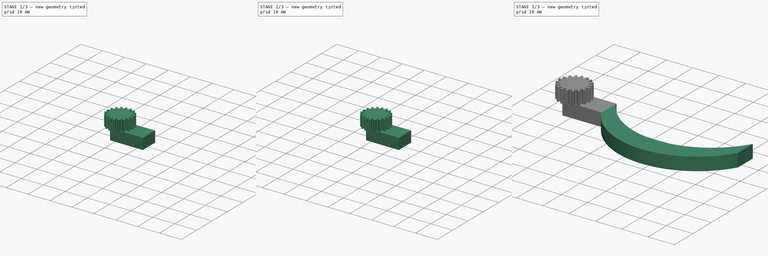
[diagram: build sequence overview — one tinted view per stage of 3, left to right]
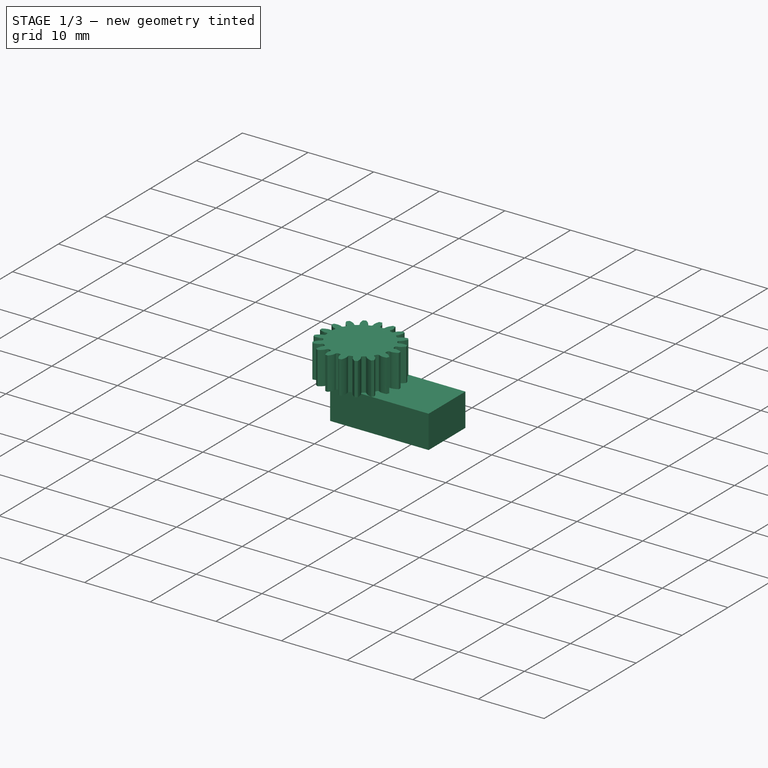
[diagram: stage 1 of 3 — iso view after this stage's code; geometry added in this stage tinted green]
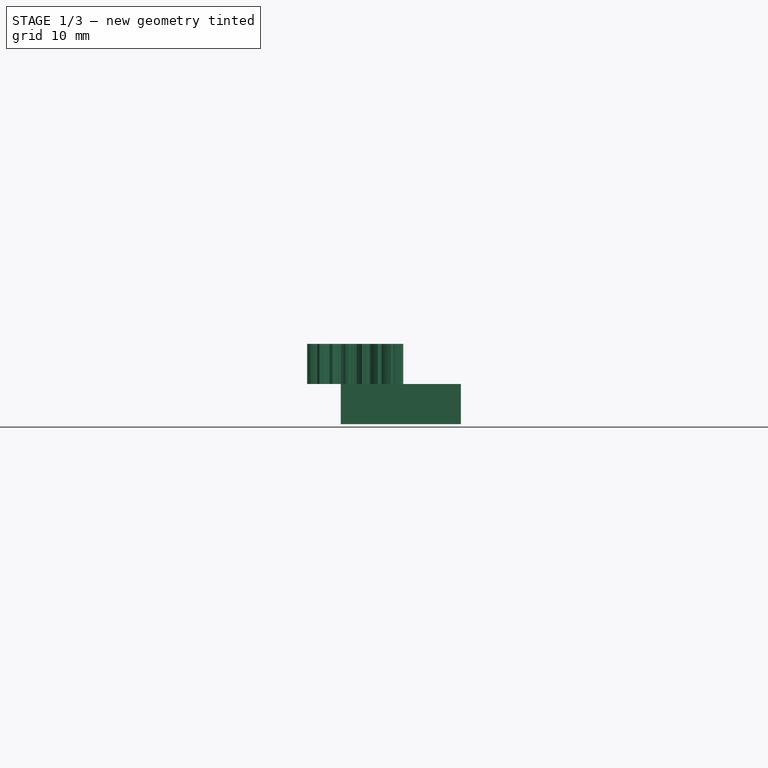
[diagram: stage 1 of 3 — front view after this stage's code; geometry added in this stage tinted green]
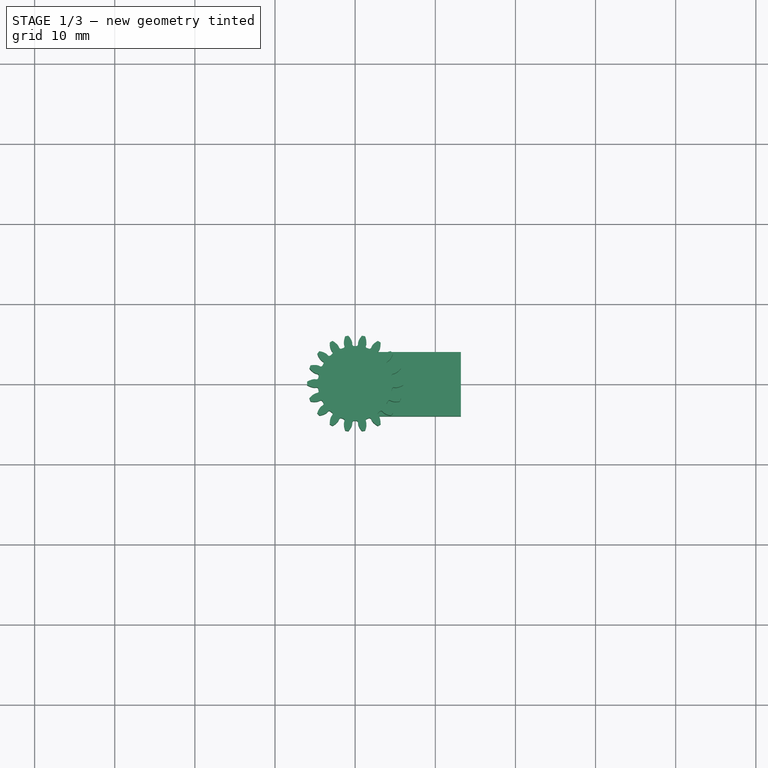
[diagram: stage 1 of 3 — top view after this stage's code; geometry added in this stage tinted green]
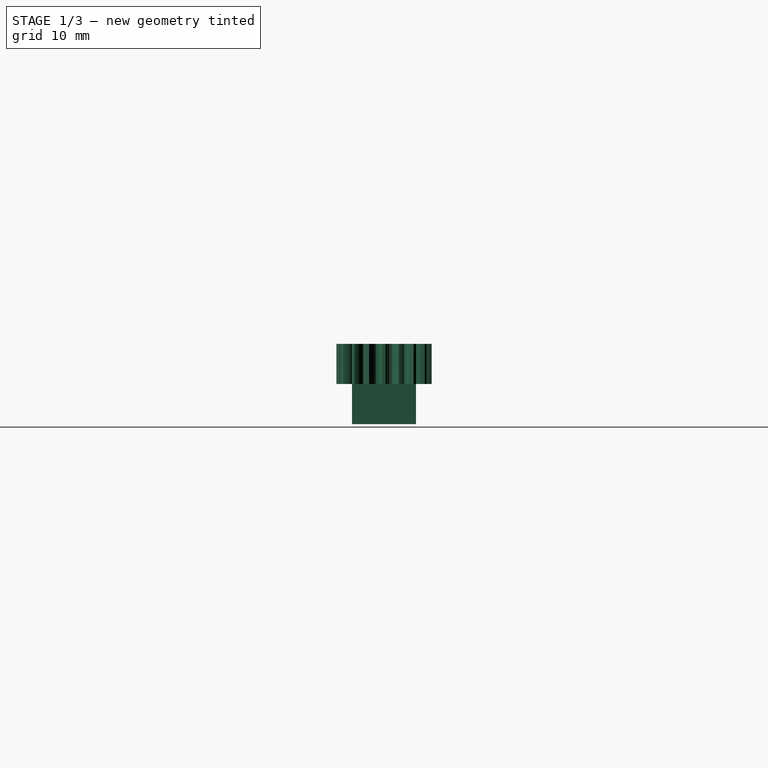
[diagram: stage 1 of 3 — right view after this stage's code; geometry added in this stage tinted green]
FCSTD DOCUMENT  (FreeCAD 0.18.4R)
Label: Greifer
License: All rights reserved
LicenseURL: http://en.wikipedia.org/wiki/All_rights_reserved
objects: Sketcher::SketchObject×2, PartDesign::Pad×2, PartDesign::Body×2, Part::MultiFuse×2, Part::Part2DObjectPython×1, Part::Extrusion×1
note: 12 computed .brp shape members not serialized (recipe doc carries the construction recipe); baked Part::Feature solids carry a one-line shape summary decoded from their .brp

FEATURE [Part::Part2DObjectPython] InvoluteGear  # Draft 2D object (typed FeaturePython)
  ExternalGear = true
  HighPrecision = true
  Modules = 0.6
  NumberOfTeeth = 18
  Placement = pos=(0,0,5) rot=(0,0,1;0rad)
  PressureAngle = 20
FEATURE [Part::Extrusion] Extrude  label="Zahnrad"
  Base = -> InvoluteGear
  Dir = (0,0,1)
  DirMode = 2
  FaceMakerClass = Part::FaceMakerBullseye
  LengthFwd = 5
  LengthRev = 0
  Solid = true
  Symmetric = false
FEATURE [Sketcher::SketchObject] Sketch
  MapMode = 5
  Support = -> [XY_Plane]
  sketch-geometry (4):
    g0: LineSegment StartX=-1.8 StartY=4 StartZ=0 EndX=13.2 EndY=4 EndZ=0
    g1: LineSegment StartX=13.2 StartY=4 StartZ=0 EndX=13.2 EndY=-4 EndZ=0
    g2: LineSegment StartX=13.2 StartY=-4 StartZ=0 EndX=-1.8 EndY=-4 EndZ=0
    g3: LineSegment StartX=-1.8 StartY=-4 StartZ=0 EndX=-1.8 EndY=4 EndZ=0
  constraints (12):
    c: Coincident(g0,g1)
    c: Coincident(g1,g2)
    c: Coincident(g2,g3)
    c: Coincident(g3,g0)
    c: Horizontal(g0)
    c: Horizontal(g2)
    c: Vertical(g1)
    c: Vertical(g3)
    c: DistanceY(g-1,g0) = 4
    c: DistanceY(g1,g1) = 8
    c: DistanceX(g2,g-1) = 1.8
    c: DistanceX(g2,g2) = 15
FEATURE [PartDesign::Pad] Pad
  Length = 5
  Length2 = 100
  Profile = -> Sketch
  Type = 0
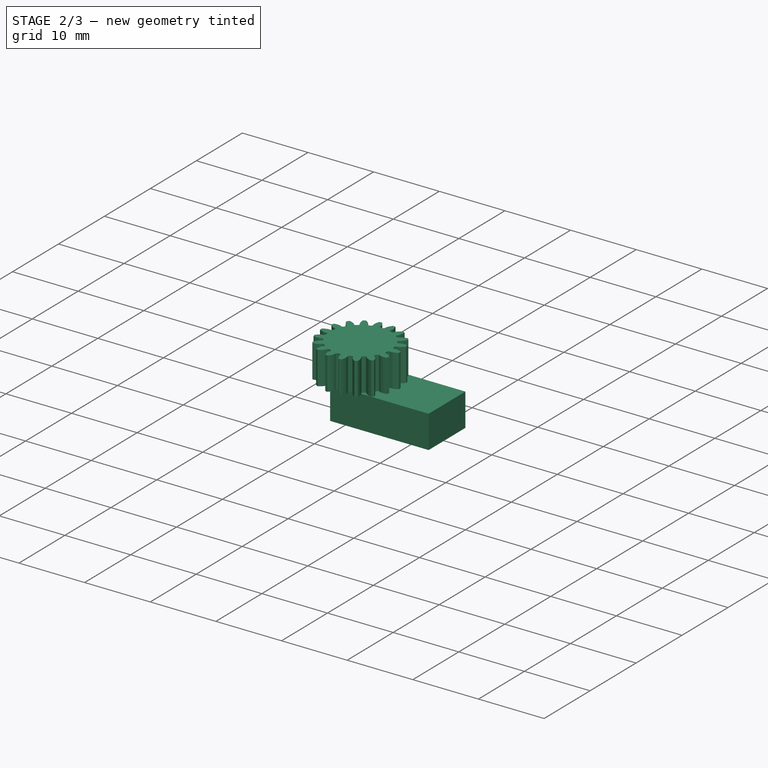
[diagram: stage 2 of 3 — iso view after this stage's code; geometry added in this stage tinted green]
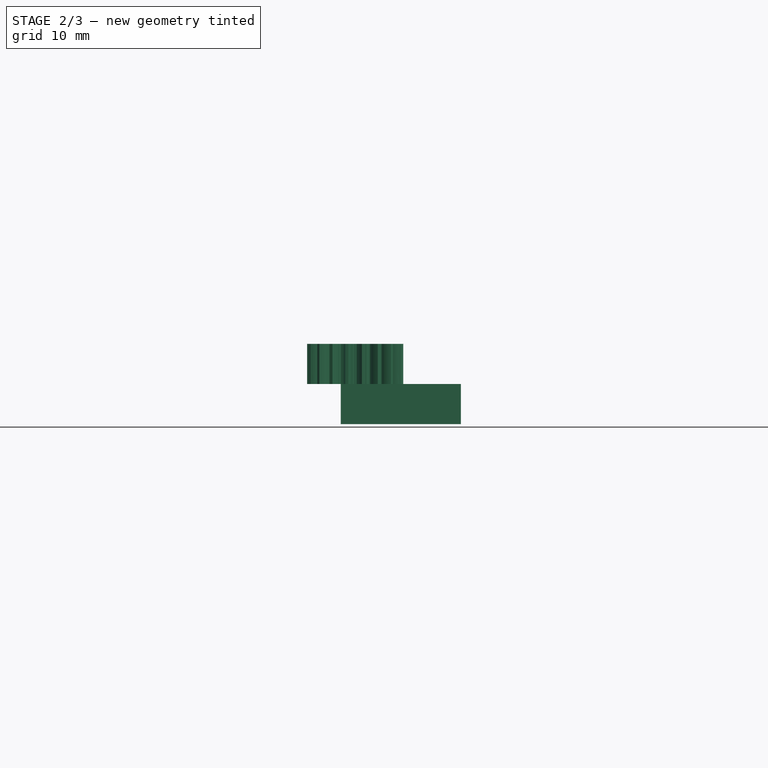
[diagram: stage 2 of 3 — front view after this stage's code; geometry added in this stage tinted green]
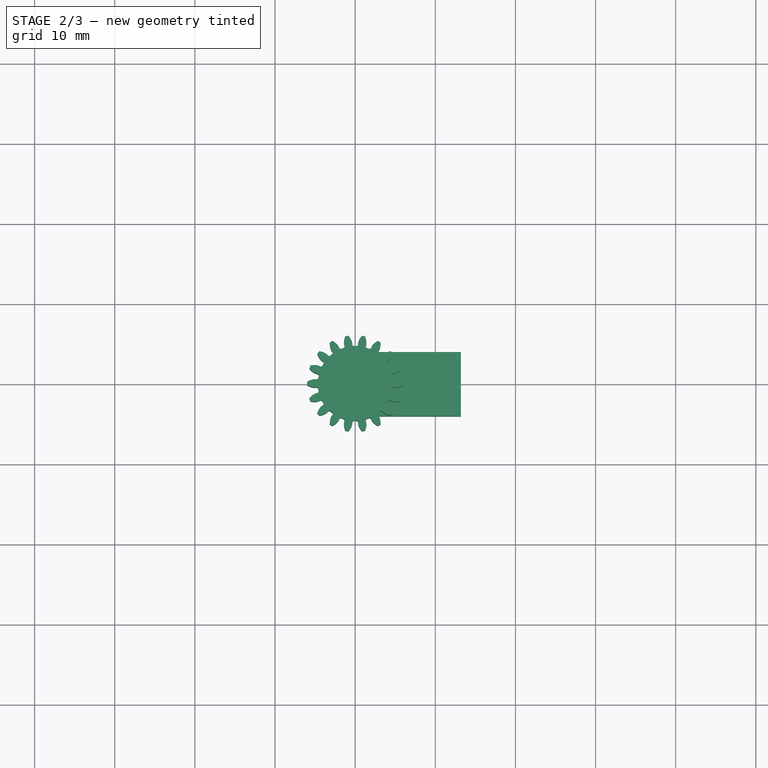
[diagram: stage 2 of 3 — top view after this stage's code; geometry added in this stage tinted green]
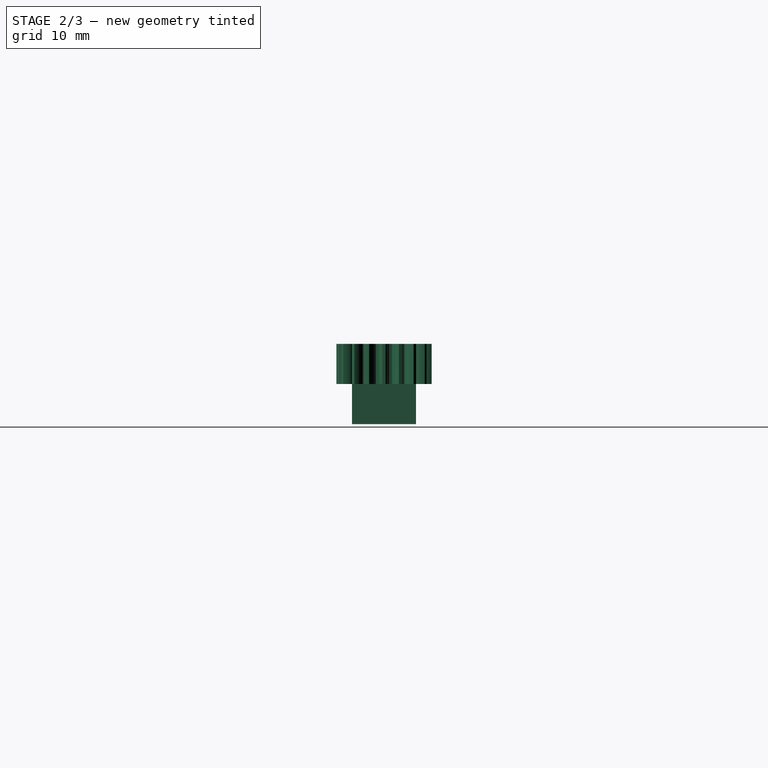
[diagram: stage 2 of 3 — right view after this stage's code; geometry added in this stage tinted green]
FEATURE [PartDesign::Body] Body001
  Group = -> [Sketch001,Pad001]
  Origin = -> Origin001
  Placement = pos=(-2,0,0) rot=(0,0,1;0rad)
  Tip = -> Pad001
FEATURE [Part::MultiFuse] Fusion
  Shapes = -> [Body,Extrude]
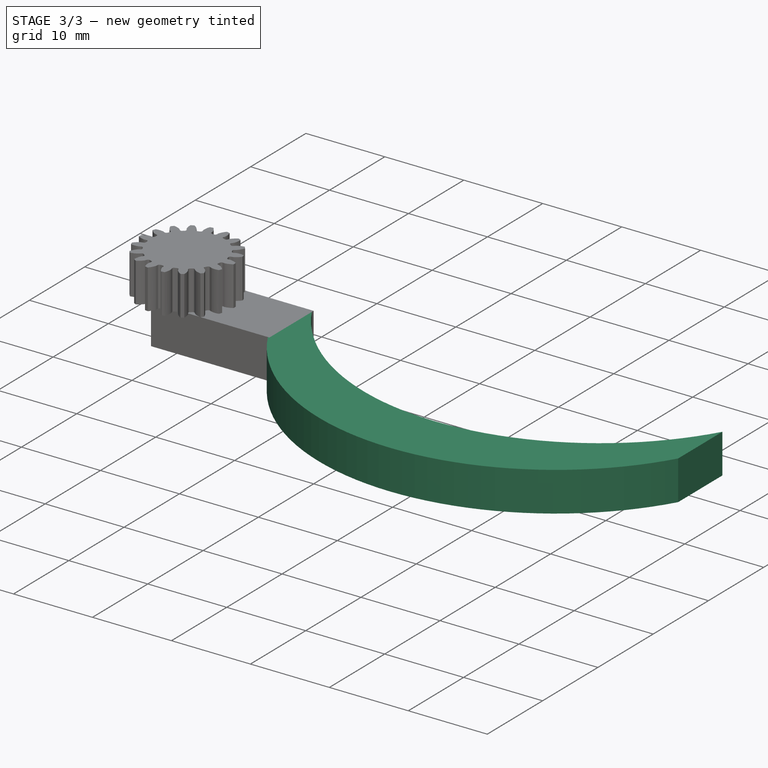
[diagram: stage 3 of 3 — iso view after this stage's code; geometry added in this stage tinted green]
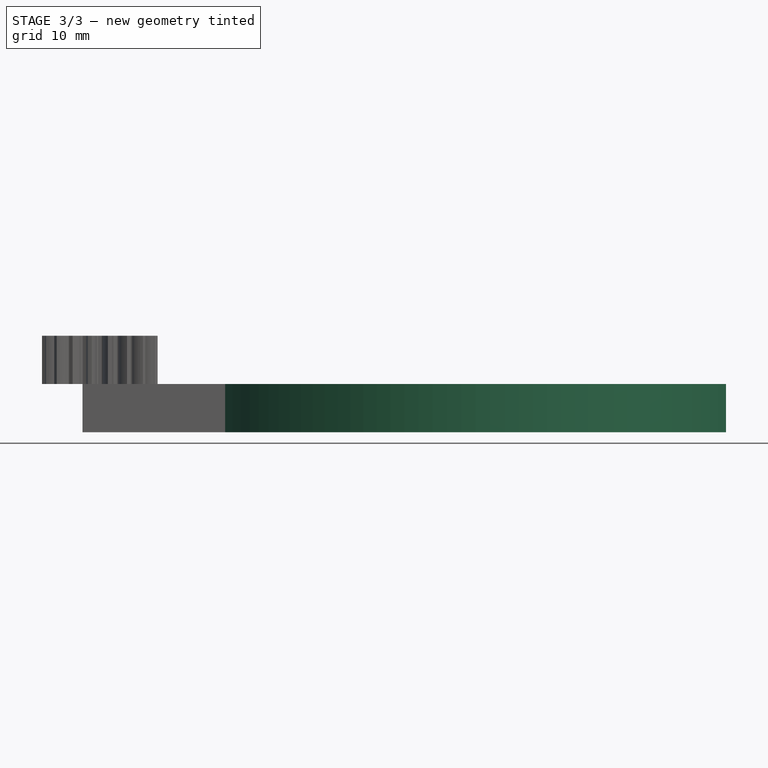
[diagram: stage 3 of 3 — front view after this stage's code; geometry added in this stage tinted green]
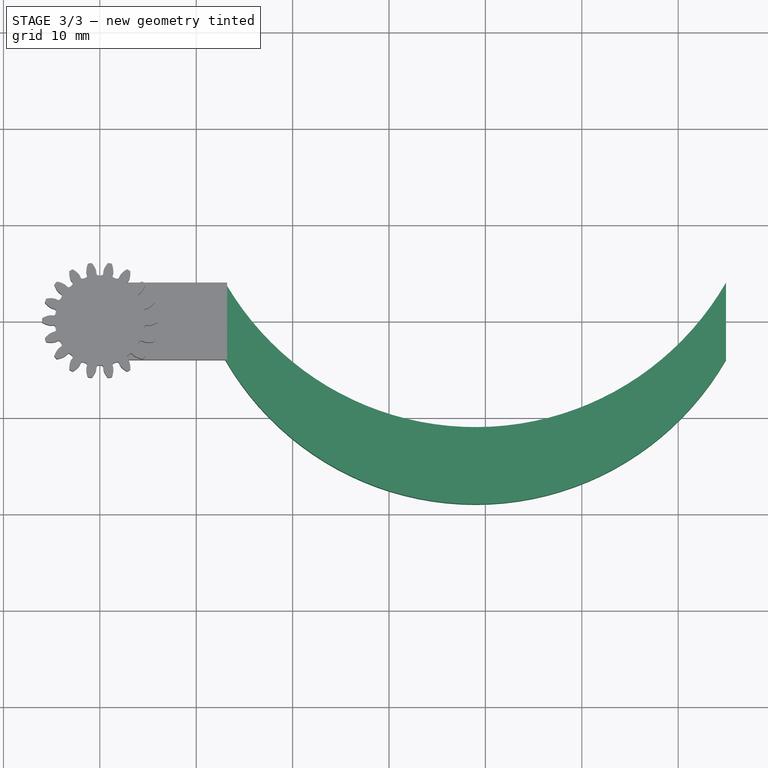
[diagram: stage 3 of 3 — top view after this stage's code; geometry added in this stage tinted green]
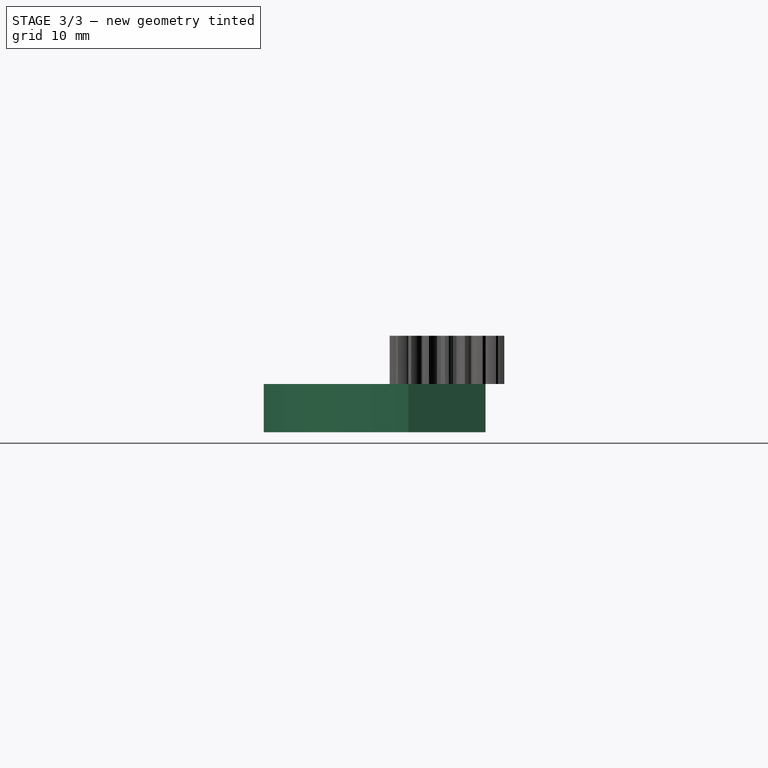
[diagram: stage 3 of 3 — right view after this stage's code; geometry added in this stage tinted green]
FEATURE [PartDesign::Body] Body
  Group = -> [Sketch,Pad]
  Origin = -> Origin
  Tip = -> Pad
FEATURE [Sketcher::SketchObject] Sketch001
  MapMode = 5
  Support = -> [XY_Plane001]
  sketch-geometry (4):
    g0: ArcOfCircle CenterX=40.9808 CenterY=19 CenterZ=0 NormalX=0 NormalY=0 NormalZ=1 AngleXU=0 Radius=30 StartAngle=3.66519 EndAngle=5.75959
    g1: LineSegment StartX=15 StartY=-4 StartZ=0 EndX=15 EndY=4 EndZ=0
    g2: LineSegment StartX=66.9615 StartY=4 StartZ=0 EndX=66.9615 EndY=-4 EndZ=0
    g3: ArcOfCircle CenterX=40.9808 CenterY=11 CenterZ=0 NormalX=0 NormalY=0 NormalZ=1 AngleXU=0 Radius=30 StartAngle=3.66519 EndAngle=5.75959
  constraints (14):
    c: Radius(g0) = 30
    c: Angle(g0) = 2.0944
    c: Coincident(g1,g0)
    c: DistanceY(g0,g-1) = -4
    c: DistanceY(g1,g-1) = 4
    c: DistanceX(g-1,g1) = 15
    c: DistanceX(g-1,g0) = 15
    c: DistanceY(g-1,g0) = 4
    c: Coincident(g2,g0)
    c: Horizontal(g2,g1)
    c: Vertical(g3,g0)
    c: Coincident(g3,g1)
    c: Angle(g3) = 2.0944
    c: Coincident(g3,g2)
FEATURE [PartDesign::Pad] Pad001
  Length = 5
  Length2 = 100
  Profile = -> Sketch001
  Type = 0
FEATURE [Part::MultiFuse] Fusion001
  Shapes = -> [Fusion,Body001]
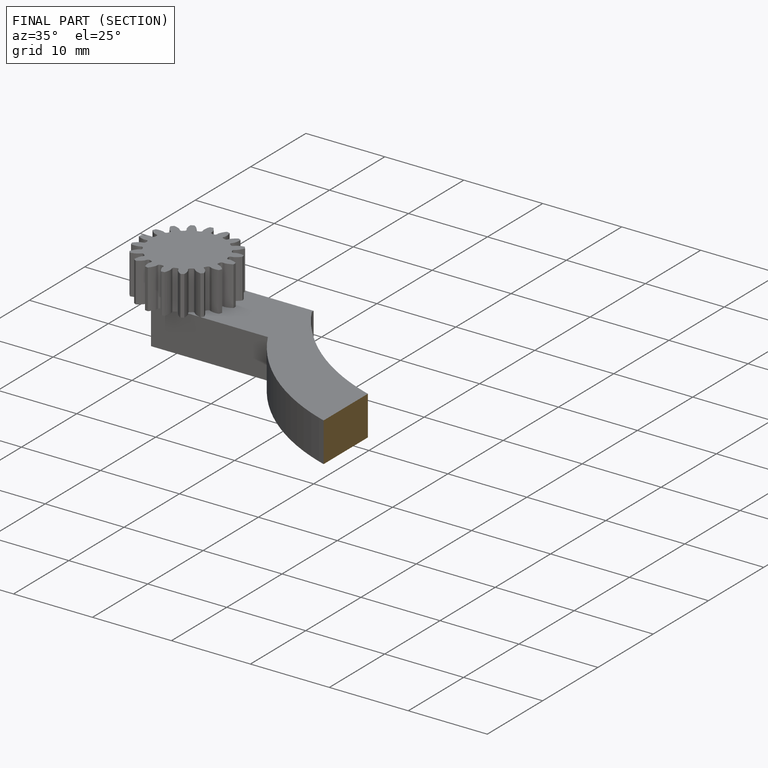
[diagram: finished part — half-section view (interior)]
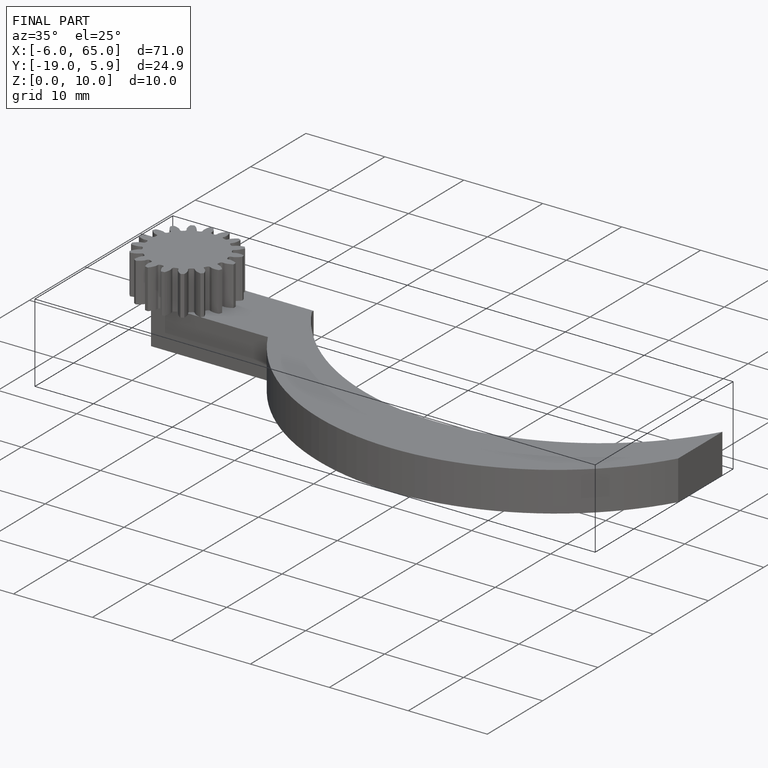
[diagram: finished part — iso view with bounding-box wireframe]
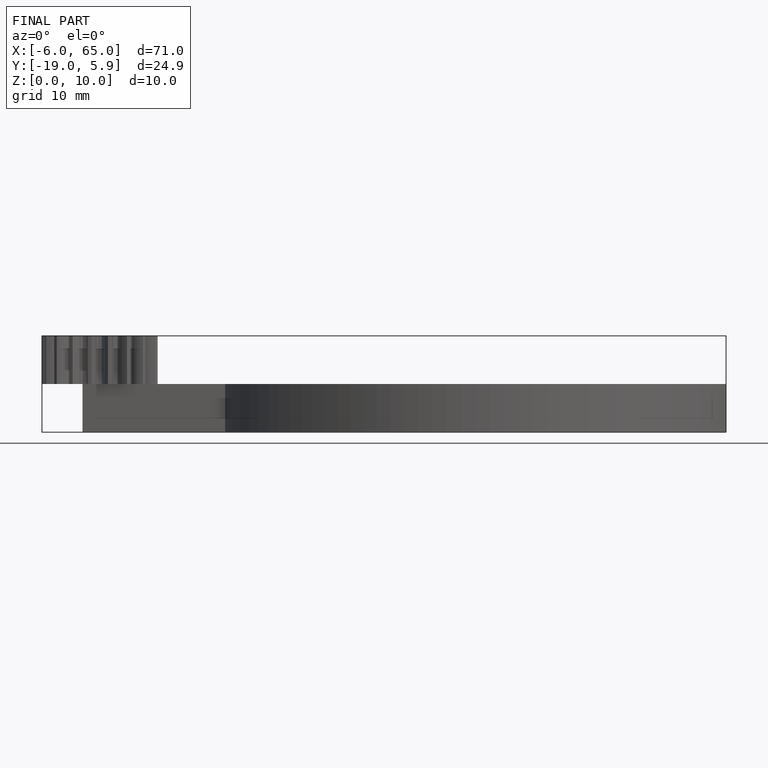
[diagram: finished part — front view with bounding-box wireframe]
